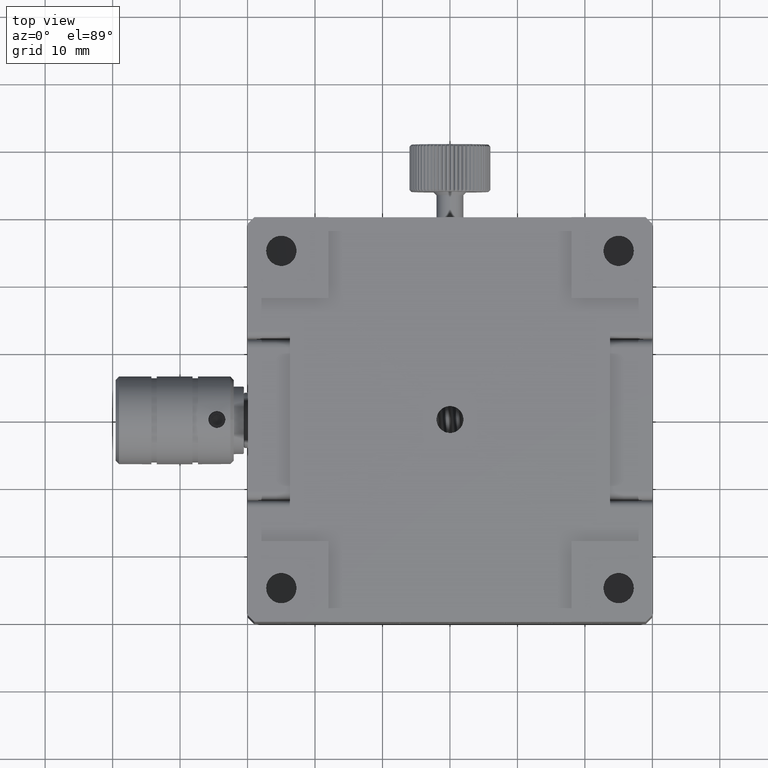
[diagram: clean part render]
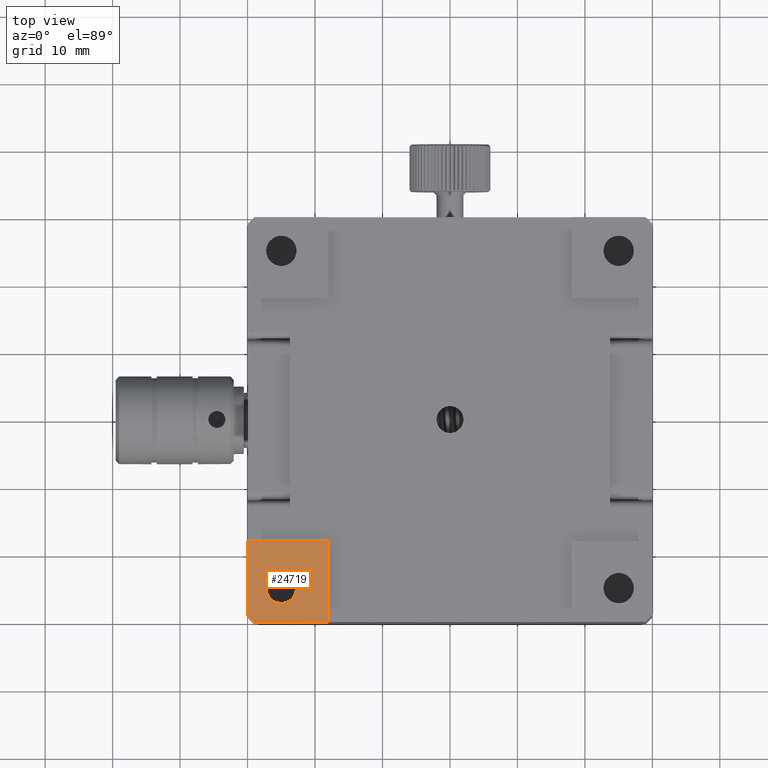
[diagram: same view with one face highlighted and labeled with its STEP entity id]
A machine part, top view. The second image highlights one B-rep face of the part: STEP entity #24719.
In plain terms, the highlighted planar face has unit normal (0, 0, 1).
Its self-contained STEP definition (entity closure, byte-faithful):
#104 = CARTESIAN_POINT ( 'NONE',  ( -30.00000000000000000, -28.99999999999998579, 100.0000000000000142 ) ) ;
#704 = CARTESIAN_POINT ( 'NONE',  ( -27.25000000000008527, -24.99999999999982236, 100.0000000000000000 ) ) ;
#1773 = CARTESIAN_POINT ( 'NONE',  ( 0.000000000000000000, -29.99999999999998934, 100.0000000000000142 ) ) ;
#3382 = EDGE_CURVE ( 'NONE', #6032, #31071, #35188, .T. ) ;
#3603 = CIRCLE ( 'NONE', #33727, 2.250000000000001776 ) ;
#4346 = DIRECTION ( 'NONE',  ( -0.000000000000000000, -0.000000000000000000, -1.000000000000000000 ) ) ;
#4431 = LINE ( 'NONE', #19328, #24298 ) ;
#4867 = DIRECTION ( 'NONE',  ( 0.000000000000000000, 0.000000000000000000, 1.000000000000000000 ) ) ;
#5440 = VECTOR ( 'NONE', #32357, 1000.000000000000000 ) ;
#6032 = VERTEX_POINT ( 'NONE', #104 ) ;
#6807 = CARTESIAN_POINT ( 'NONE',  ( -30.00000000000000000, -29.99999999999998934, 100.0000000000000000 ) ) ;
#7422 = VERTEX_POINT ( 'NONE', #704 ) ;
#7705 = LINE ( 'NONE', #15860, #31848 ) ;
#8165 = EDGE_LOOP ( 'NONE', ( #21404 ) ) ;
#9345 = CARTESIAN_POINT ( 'NONE',  ( -30.00000000000000000, -29.99999999999998934, 100.0000000000000000 ) ) ;
#9776 = EDGE_CURVE ( 'NONE', #7422, #7422, #3603, .T. ) ;
#11434 = AXIS2_PLACEMENT_3D ( 'NONE', #6807, #4867, #24172 ) ;
#12914 = VERTEX_POINT ( 'NONE', #31559 ) ;
#13858 = LINE ( 'NONE', #1773, #17438 ) ;
#14521 = ORIENTED_EDGE ( 'NONE', *, *, #23752, .F. ) ;
#14777 = VERTEX_POINT ( 'NONE', #18383 ) ;
#15860 = CARTESIAN_POINT ( 'NONE',  ( -30.00000000000002487, -18.00000000000001421, 100.0000000000000000 ) ) ;
#16508 = DIRECTION ( 'NONE',  ( 0.7071067811865474617, -0.7071067811865474617, -0.000000000000000000 ) ) ;
#17438 = VECTOR ( 'NONE', #33831, 1000.000000000000000 ) ;
#18214 = ORIENTED_EDGE ( 'NONE', *, *, #23337, .F. ) ;
#18383 = CARTESIAN_POINT ( 'NONE',  ( -18.00000000000001776, -29.99999999999998934, 100.0000000000000142 ) ) ;
#18572 = EDGE_LOOP ( 'NONE', ( #24851, #18214, #18822, #22639, #14521 ) ) ;
#18822 = ORIENTED_EDGE ( 'NONE', *, *, #3382, .F. ) ;
#19328 = CARTESIAN_POINT ( 'NONE',  ( -30.00000000000000000, -28.99999999999998579, 100.0000000000000000 ) ) ;
#19720 = CARTESIAN_POINT ( 'NONE',  ( -28.99999999999998934, -29.99999999999998934, 100.0000000000000142 ) ) ;
#19766 = LINE ( 'NONE', #30889, #23150 ) ;
#19937 = VERTEX_POINT ( 'NONE', #19720 ) ;
#21162 = FACE_OUTER_BOUND ( 'NONE', #18572, .T. ) ;
#21404 = ORIENTED_EDGE ( 'NONE', *, *, #9776, .T. ) ;
#22399 = PLANE ( 'NONE',  #11434 ) ;
#22639 = ORIENTED_EDGE ( 'NONE', *, *, #26974, .T. ) ;
#23150 = VECTOR ( 'NONE', #31254, 1000.000000000000000 ) ;
#23337 = EDGE_CURVE ( 'NONE', #31071, #12914, #7705, .T. ) ;
#23752 = EDGE_CURVE ( 'NONE', #14777, #19937, #13858, .T. ) ;
#24172 = DIRECTION ( 'NONE',  ( 1.000000000000000000, 0.000000000000000000, -0.000000000000000000 ) ) ;
#24298 = VECTOR ( 'NONE', #16508, 1000.000000000000114 ) ;
#24689 = DIRECTION ( 'NONE',  ( 1.000000000000000000, 5.782411586589356653E-16, -0.000000000000000000 ) ) ;
#24719 = ADVANCED_FACE ( 'NONE', ( #21162, #27178 ), #22399, .T. ) ;
#24851 = ORIENTED_EDGE ( 'NONE', *, *, #30973, .F. ) ;
#26974 = EDGE_CURVE ( 'NONE', #6032, #19937, #4431, .T. ) ;
#27178 = FACE_BOUND ( 'NONE', #8165, .T. ) ;
#27535 = DIRECTION ( 'NONE',  ( -1.000000000000000000, 0.000000000000000000, 0.000000000000000000 ) ) ;
#29198 = CARTESIAN_POINT ( 'NONE',  ( -30.00000000000001776, -18.00000000000001421, 100.0000000000000142 ) ) ;
#30889 = CARTESIAN_POINT ( 'NONE',  ( -18.00000000000001776, -30.00000000000000000, 100.0000000000000000 ) ) ;
#30973 = EDGE_CURVE ( 'NONE', #12914, #14777, #19766, .T. ) ;
#31071 = VERTEX_POINT ( 'NONE', #29198 ) ;
#31254 = DIRECTION ( 'NONE',  ( -0.000000000000000000, -1.000000000000000000, -0.000000000000000000 ) ) ;
#31559 = CARTESIAN_POINT ( 'NONE',  ( -18.00000000000001776, -18.00000000000001066, 100.0000000000000142 ) ) ;
#31848 = VECTOR ( 'NONE', #24689, 1000.000000000000000 ) ;
#32357 = DIRECTION ( 'NONE',  ( 0.000000000000000000, 1.000000000000000000, -0.000000000000000000 ) ) ;
#33387 = CARTESIAN_POINT ( 'NONE',  ( -25.00000000000008527, -24.99999999999982236, 100.0000000000000000 ) ) ;
#33727 = AXIS2_PLACEMENT_3D ( 'NONE', #33387, #4346, #27535 ) ;
#33831 = DIRECTION ( 'NONE',  ( -1.000000000000000000, -0.000000000000000000, -0.000000000000000000 ) ) ;
#35188 = LINE ( 'NONE', #9345, #5440 ) ;